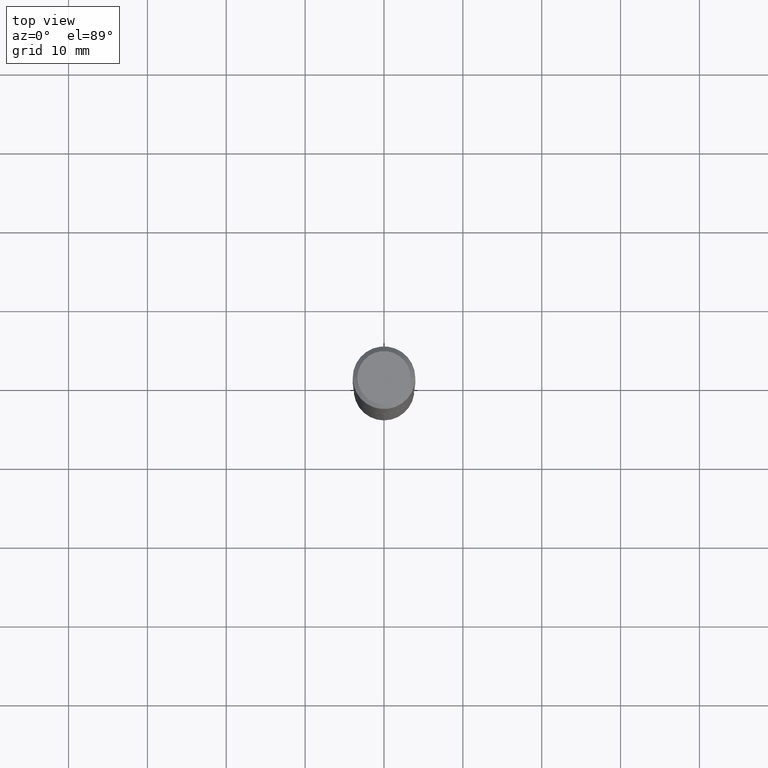
[diagram: clean part render]
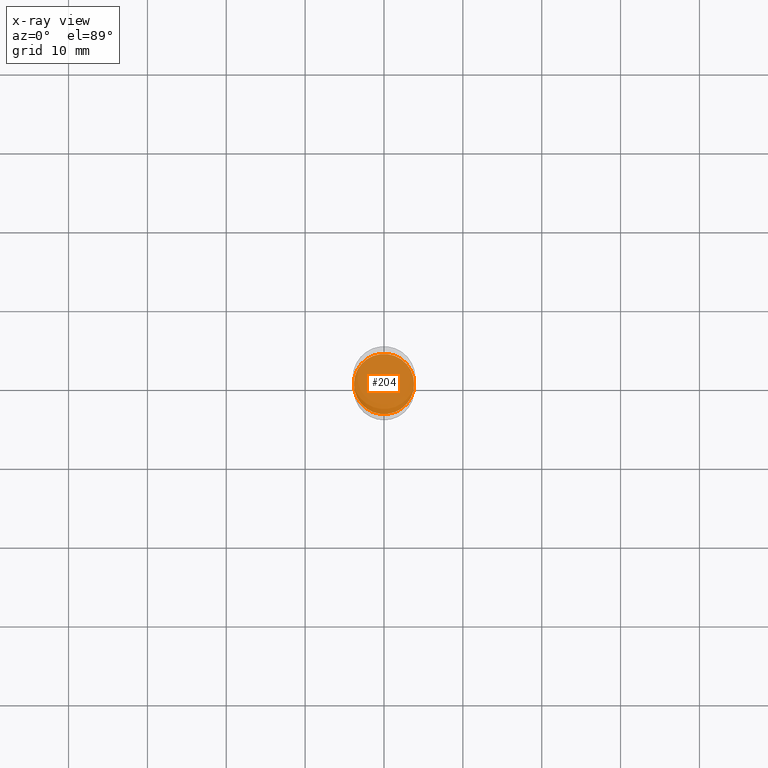
[diagram: x-ray — body ghosted, one internal face saturated and labeled with its STEP entity id]
A machine part, top view, then the same camera in x-ray: the body is ghosted and one INTERNAL B-rep face — a face not visible from any outside direction — is saturated and labeled: STEP entity #204.
In plain terms, the highlighted planar face has unit normal (-0, 0, 1).
Its self-contained STEP definition (entity closure, byte-faithful):
#62 = CIRCLE ( 'NONE', #427, 0.1504999999999999949 ) ;
#84 = DIRECTION ( 'NONE',  ( -2.445468806185136597E-29, 3.491481338843145583E-15, 1.000000000000000000 ) ) ;
#94 = AXIS2_PLACEMENT_3D ( 'NONE', #311, #84, #383 ) ;
#116 = FACE_OUTER_BOUND ( 'NONE', #160, .T. ) ;
#124 = CARTESIAN_POINT ( 'NONE',  ( 0.1504999999999999949, -7.506335730378875290E-15, -1.848900000000000432 ) ) ;
#141 = CARTESIAN_POINT ( 'NONE',  ( -0.1504999999999999949, -5.383383802894031318E-15, -1.848900000000000432 ) ) ;
#160 = EDGE_LOOP ( 'NONE', ( #452, #405 ) ) ;
#197 = DIRECTION ( 'NONE',  ( -2.438088387897960049E-29, 3.491481338843145188E-15, 1.000000000000000000 ) ) ;
#204 = ADVANCED_FACE ( 'NONE', ( #116 ), #230, .F. ) ;
#212 = AXIS2_PLACEMENT_3D ( 'NONE', #375, #197, #335 ) ;
#222 = EDGE_CURVE ( 'NONE', #304, #487, #62, .T. ) ;
#230 = PLANE ( 'NONE',  #212 ) ;
#258 = CIRCLE ( 'NONE', #94, 0.1504999999999999949 ) ;
#276 = DIRECTION ( 'NONE',  ( 1.000000000000000000, -6.982962677686265133E-15, 0.000000000000000000 ) ) ;
#304 = VERTEX_POINT ( 'NONE', #124 ) ;
#311 = CARTESIAN_POINT ( 'NONE',  ( 4.521427275755699550E-29, -6.455399847387092276E-15, -1.848900000000000432 ) ) ;
#321 = EDGE_CURVE ( 'NONE', #487, #304, #258, .T. ) ;
#335 = DIRECTION ( 'NONE',  ( 1.000000000000000000, -6.982962677686265922E-15, 4.876176775795935793E-29 ) ) ;
#343 = DIRECTION ( 'NONE',  ( -2.445468806185136597E-29, 3.491481338843145583E-15, 1.000000000000000000 ) ) ;
#375 = CARTESIAN_POINT ( 'NONE',  ( 4.521427275755699550E-29, -6.455399847387092276E-15, -1.848900000000000432 ) ) ;
#383 = DIRECTION ( 'NONE',  ( 1.000000000000000000, -6.982962677686265133E-15, 0.000000000000000000 ) ) ;
#405 = ORIENTED_EDGE ( 'NONE', *, *, #321, .F. ) ;
#427 = AXIS2_PLACEMENT_3D ( 'NONE', #433, #343, #276 ) ;
#433 = CARTESIAN_POINT ( 'NONE',  ( 4.521427275755699550E-29, -6.455399847387092276E-15, -1.848900000000000432 ) ) ;
#452 = ORIENTED_EDGE ( 'NONE', *, *, #222, .F. ) ;
#487 = VERTEX_POINT ( 'NONE', #141 ) ;